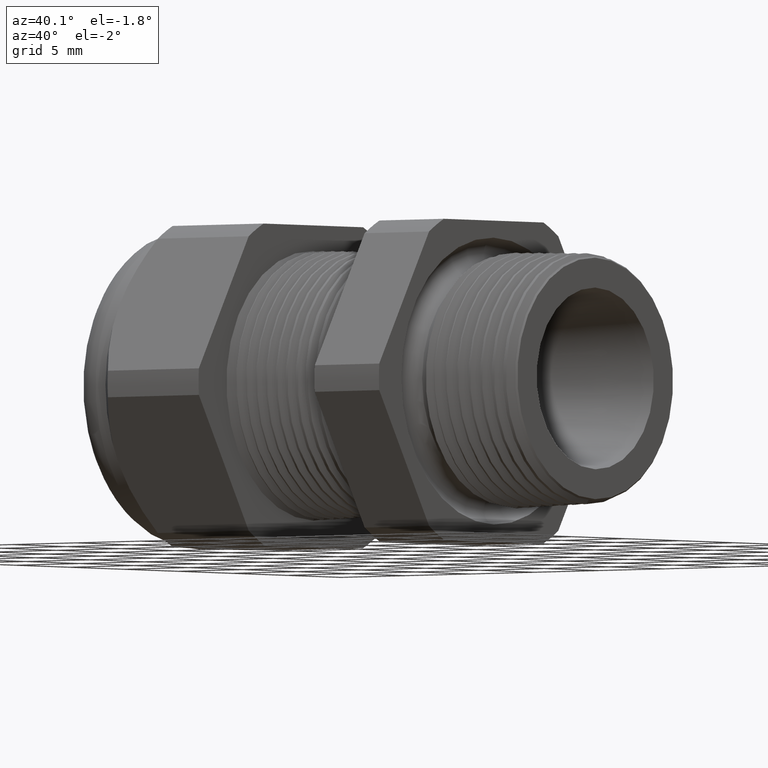
[diagram: clean part render]
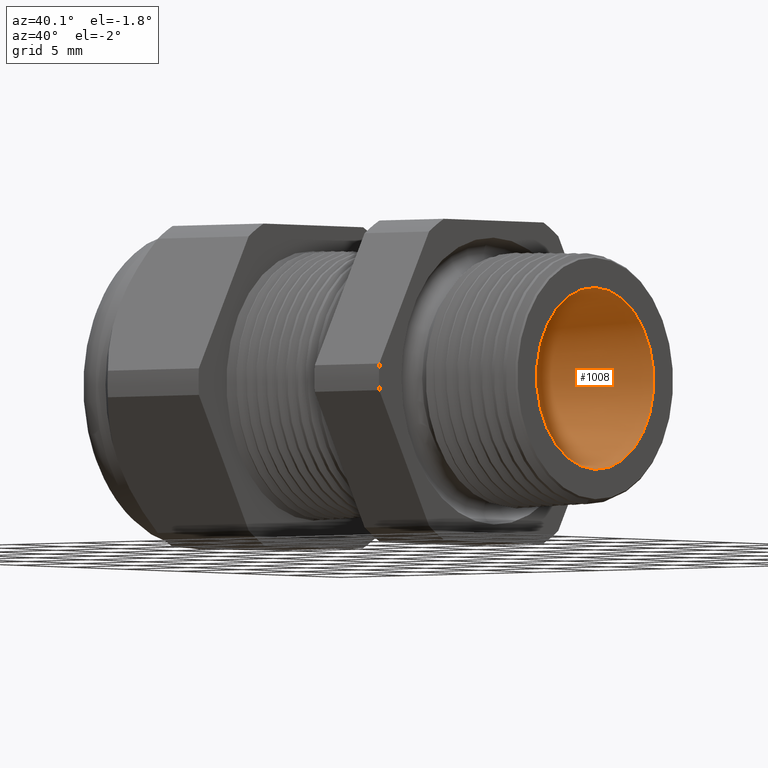
[diagram: same view with one face highlighted and labeled with its STEP entity id]
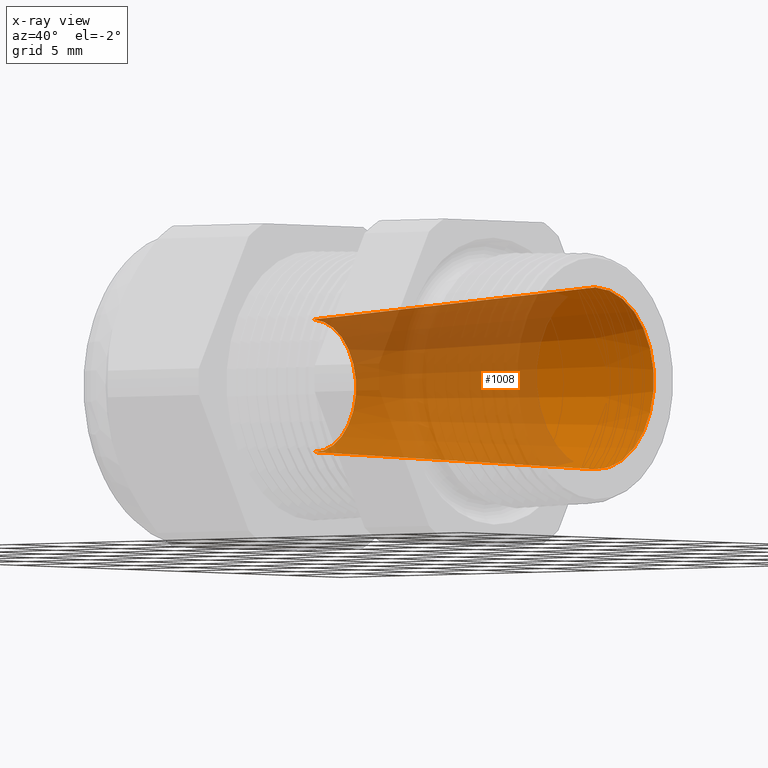
[diagram: x-ray of the same camera — body ghosted, the highlighted face saturated]
A machine part, auxiliary view. The second image highlights one B-rep face of the part: STEP entity #1008.
The next image is the same camera in x-ray: the body ghosted, the highlighted face saturated — about 65% of this face is hidden behind the body in this view.
In plain terms, the highlighted conical surface has half-angle 3.818 deg.
Its self-contained STEP definition (entity closure, byte-faithful):
#656 = EDGE_CURVE ( 'NONE', #1780, #671, #2432, .T. ) ;
#662 = VERTEX_POINT ( 'NONE', #2419 ) ;
#669 = EDGE_CURVE ( 'NONE', #1789, #662, #2470, .T. ) ;
#671 = VERTEX_POINT ( 'NONE', #2461 ) ;
#846 = ORIENTED_EDGE ( 'NONE', *, *, #1006, .T. ) ;
#1006 = EDGE_CURVE ( 'NONE', #671, #662, #3077, .T. ) ;
#1008 = ADVANCED_FACE ( 'NONE', ( #3134 ), #3133, .F. ) ;
#1009 = EDGE_LOOP ( 'NONE', ( #1010, #1011, #1013, #846 ) ) ;
#1010 = ORIENTED_EDGE ( 'NONE', *, *, #669, .F. ) ;
#1011 = ORIENTED_EDGE ( 'NONE', *, *, #1012, .F. ) ;
#1012 = EDGE_CURVE ( 'NONE', #1780, #1789, #3132, .T. ) ;
#1013 = ORIENTED_EDGE ( 'NONE', *, *, #656, .T. ) ;
#1780 = VERTEX_POINT ( 'NONE', #4472 ) ;
#1789 = VERTEX_POINT ( 'NONE', #4510 ) ;
#2419 = CARTESIAN_POINT ( 'NONE',  ( 4.443791160244338600E-018, 2.601853076012465100E-017, 0.2124574267310359600 ) ) ;
#2429 = DIRECTION ( 'NONE',  ( 0.9977800507276000100, 0.0000000000000000000, -0.06659557320143644200 ) ) ;
#2430 = VECTOR ( 'NONE', #2429, 39.37007874015748100 ) ;
#2431 = CARTESIAN_POINT ( 'NONE',  ( -0.8608661417322833700, 0.0000000000000000000, -0.1550000000000000000 ) ) ;
#2432 = LINE ( 'NONE', #2431, #2430 ) ;
#2461 = CARTESIAN_POINT ( 'NONE',  ( 4.443791160244338600E-018, 0.0000000000000000000, -0.2124574267310359600 ) ) ;
#2462 = DIRECTION ( 'NONE',  ( 0.9977800507276000100, 8.155605555852239100E-018, 0.06659557320143644200 ) ) ;
#2463 = VECTOR ( 'NONE', #2462, 39.37007874015748100 ) ;
#2464 = CARTESIAN_POINT ( 'NONE',  ( -0.8608661417322833700, 1.898202538678397300E-017, 0.1550000000000000000 ) ) ;
#2470 = LINE ( 'NONE', #2464, #2463 ) ;
#3076 = AXIS2_PLACEMENT_3D ( 'NONE', #3137, #3136, #3135 ) ;
#3077 = CIRCLE ( 'NONE', #3076, 0.2124574267310359600 ) ;
#3124 = DIRECTION ( 'NONE',  ( 0.0000000000000000000, 0.0000000000000000000, -1.000000000000000000 ) ) ;
#3125 = DIRECTION ( 'NONE',  ( 1.000000000000000000, 0.0000000000000000000, 0.0000000000000000000 ) ) ;
#3126 = CARTESIAN_POINT ( 'NONE',  ( -0.8608661417322833700, 0.0000000000000000000, 0.0000000000000000000 ) ) ;
#3127 = AXIS2_PLACEMENT_3D ( 'NONE', #3126, #3125, #3124 ) ;
#3128 = DIRECTION ( 'NONE',  ( 0.0000000000000000000, 0.0000000000000000000, -1.000000000000000000 ) ) ;
#3129 = DIRECTION ( 'NONE',  ( 1.000000000000000000, 0.0000000000000000000, 0.0000000000000000000 ) ) ;
#3130 = CARTESIAN_POINT ( 'NONE',  ( -0.8608661417322833700, 0.0000000000000000000, 0.0000000000000000000 ) ) ;
#3131 = AXIS2_PLACEMENT_3D ( 'NONE', #3130, #3129, #3128 ) ;
#3132 = CIRCLE ( 'NONE', #3127, 0.1550000000000000000 ) ;
#3133 = CONICAL_SURFACE ( 'NONE', #3131, 0.1550000000000000000, 0.06664489660048481000 ) ;
#3134 = FACE_OUTER_BOUND ( 'NONE', #1009, .T. ) ;
#3135 = DIRECTION ( 'NONE',  ( 0.0000000000000000000, 0.0000000000000000000, -1.000000000000000000 ) ) ;
#3136 = DIRECTION ( 'NONE',  ( 1.000000000000000000, 0.0000000000000000000, 0.0000000000000000000 ) ) ;
#3137 = CARTESIAN_POINT ( 'NONE',  ( 4.443791160244338600E-018, 0.0000000000000000000, 0.0000000000000000000 ) ) ;
#4472 = CARTESIAN_POINT ( 'NONE',  ( -0.8608661417322833700, 0.0000000000000000000, -0.1550000000000000000 ) ) ;
#4510 = CARTESIAN_POINT ( 'NONE',  ( -0.8608661417322833700, 2.250027807345431400E-017, 0.1550000000000000000 ) ) ;